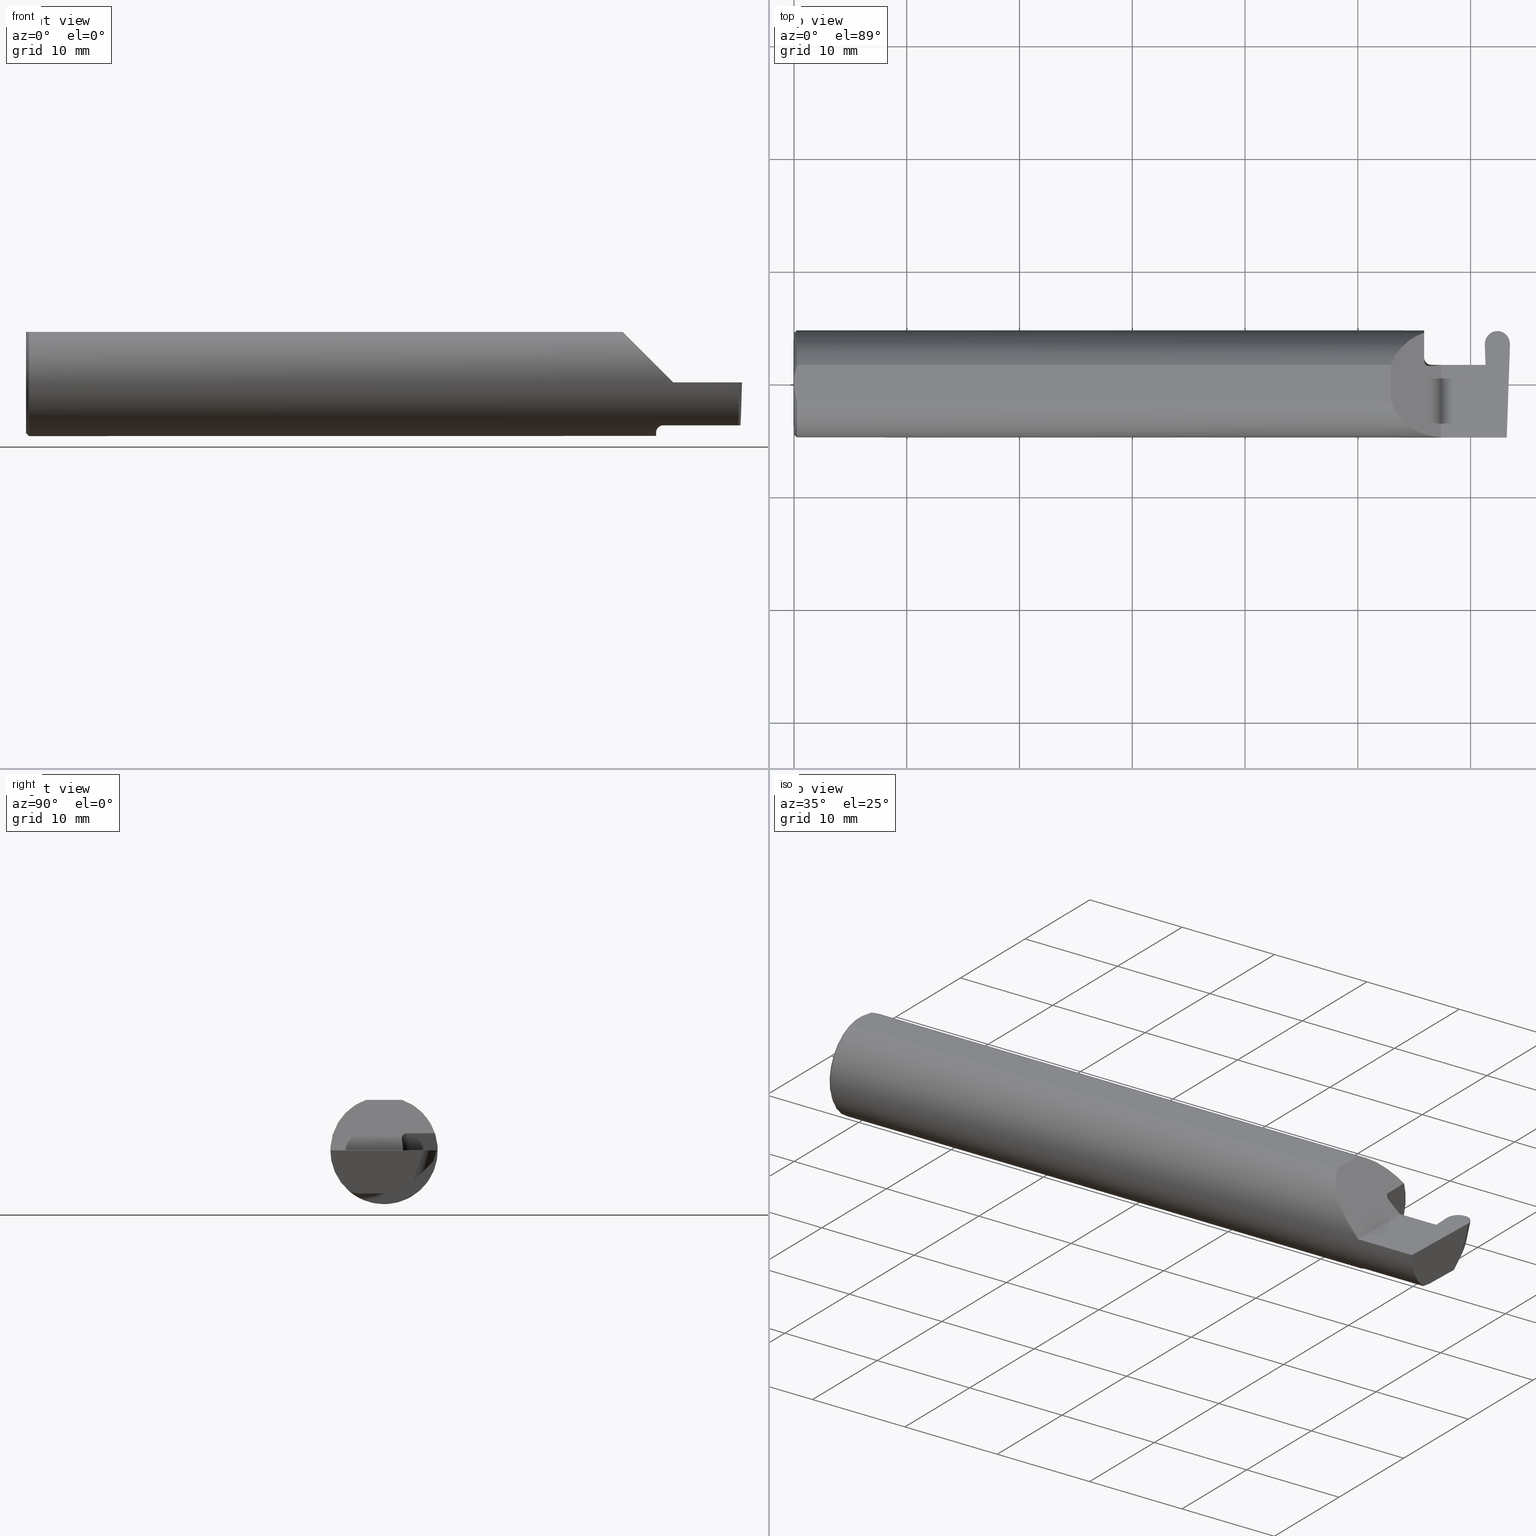
[diagram: canonical four-view strip — front | top / right | iso, engineering-drawing reading convention]
A machine part, canonical four-view strip (front | top / right | iso — engineering-drawing reading convention). The complete STEP part file that produces these views, byte-faithful:
ISO-10303-21;
HEADER;
FILE_DESCRIPTION (( 'STEP AP203' ),
    '1' );
FILE_NAME ('222188-GFR087-4.STEP',
    '2024-06-28T18:14:13',
    ( '' ),
    ( '' ),
    'SwSTEP 2.0',
    'SolidWorks 2024',
    '' );
FILE_SCHEMA (( 'CONFIG_CONTROL_DESIGN' ));
ENDSEC;

DATA;
#1 = UNCERTAINTY_MEASURE_WITH_UNIT (LENGTH_MEASURE( 1.000000000000000082E-05 ), #66, 'distance_accuracy_value', 'NONE');
#2 = CARTESIAN_POINT ( 'NONE',  ( 2.200358271039143165, -0.07873626113568055196, -0.1700887912276896896 ) ) ;
#3 = CARTESIAN_POINT ( 'NONE',  ( 2.414359555045604289, 0.06664999999999991764, 0.000000000000000000 ) ) ;
#4 = ORIENTED_EDGE ( 'NONE', *, *, #500, .F. ) ;
#5 = FACE_OUTER_BOUND ( 'NONE', #675, .T. ) ;
#6 = CARTESIAN_POINT ( 'NONE',  ( 2.498904563091020936, 0.1423838600483241235, -0.06791919149482580909 ) ) ;
#7 = CIRCLE ( 'NONE', #386, 0.1873499999999999888 ) ;
#8 = ORIENTED_EDGE ( 'NONE', *, *, #26, .F. ) ;
#9 = CARTESIAN_POINT ( 'NONE',  ( 2.488471823259917226, -0.1172600179964003730, -0.1461167706989304760 ) ) ;
#10 = ORIENTED_EDGE ( 'NONE', *, *, #128, .T. ) ;
#11 = CARTESIAN_POINT ( 'NONE',  ( 2.225000000000000089, 0.06250952145814828165, 0.03500000000000009354 ) ) ;
#12 = ORGANIZATION ( 'UNSPECIFIED', 'UNSPECIFIED', '' ) ;
#13 = DIRECTION ( 'NONE',  ( 1.000000000000000000, 0.000000000000000000, -0.000000000000000000 ) ) ;
#14 = ORIENTED_EDGE ( 'NONE', *, *, #492, .F. ) ;
#15 = APPROVAL ( #76, 'UNSPECIFIED' ) ;
#16 = CARTESIAN_POINT ( 'NONE',  ( 2.260000000000000231, -0.1873499999999999888, 2.939152317953647352E-17 ) ) ;
#17 = VERTEX_POINT ( 'NONE', #473 ) ;
#18 = EDGE_CURVE ( 'NONE', #592, #421, #639, .T. ) ;
#19 = LINE ( 'NONE', #27, #21 ) ;
#20 = ORIENTED_EDGE ( 'NONE', *, *, #403, .F. ) ;
#21 = VECTOR ( 'NONE', #640, 39.37007874015748143 ) ;
#22 = CARTESIAN_POINT ( 'NONE',  ( 2.455902844999999779, 0.1774764172755840530, -0.02207801745349973269 ) ) ;
#23 = CC_DESIGN_DATE_AND_TIME_ASSIGNMENT ( #672, #132, ( #510 ) ) ;
#24 = ORIENTED_EDGE ( 'NONE', *, *, #268, .T. ) ;
#25 = PERSON_AND_ORGANIZATION_ROLE ( 'creator' ) ;
#26 = EDGE_CURVE ( 'NONE', #421, #620, #243, .T. ) ;
#27 = CARTESIAN_POINT ( 'NONE',  ( 2.411832552795360574, 0.1390138764844879860, 0.000000000000000000 ) ) ;
#28 = CARTESIAN_POINT ( 'NONE',  ( 2.200000000000000178, 0.06664999999999997315, 3.673940397442062580E-17 ) ) ;
#29 = AXIS2_PLACEMENT_3D ( 'NONE', #73, #180, #301 ) ;
#30 = DIRECTION ( 'NONE',  ( -0.000000000000000000, 1.000000000000000000, -0.000000000000000000 ) ) ;
#31 = ORIENTED_EDGE ( 'NONE', *, *, #356, .F. ) ;
#32 = APPROVAL_DATE_TIME ( #304, #279 ) ;
#33 = DIRECTION ( 'NONE',  ( -0.01299916717458333634, 0.7070470357949163454, 0.7070470357949245610 ) ) ;
#34 = ORIENTED_EDGE ( 'NONE', *, *, #262, .F. ) ;
#35 = PRODUCT_DEFINITION_FORMATION_WITH_SPECIFIED_SOURCE ( 'ANY', '', #647, .NOT_KNOWN. ) ;
#36 = ADVANCED_FACE ( 'NONE', ( #137 ), #184, .F. ) ;
#37 = CARTESIAN_POINT ( 'NONE',  ( 0.000000000000000000, 0.000000000000000000, -0.1773500000000005072 ) ) ;
#38 = DIRECTION ( 'NONE',  ( -6.448948547284692709E-16, 1.000000000000000000, 0.000000000000000000 ) ) ;
#39 = CARTESIAN_POINT ( 'NONE',  ( 0.000000000000000000, 0.01880691362239451242, 0.1763499999999999235 ) ) ;
#40 = DIRECTION ( 'NONE',  ( -0.02739170151059988276, -0.3089010440752014142, -0.9506996579664920288 ) ) ;
#41 = ORIENTED_EDGE ( 'NONE', *, *, #470, .T. ) ;
#42 = FACE_OUTER_BOUND ( 'NONE', #273, .T. ) ;
#43 = DIRECTION ( 'NONE',  ( -1.000000000000000000, -6.448948547284692709E-16, -0.000000000000000000 ) ) ;
#44 = ORIENTED_EDGE ( 'NONE', *, *, #546, .F. ) ;
#45 = DIRECTION ( 'NONE',  ( 0.7071067811865426878, 0.000000000000000000, -0.7071067811865523467 ) ) ;
#46 = EDGE_CURVE ( 'NONE', #373, #17, #100, .T. ) ;
#47 = CARTESIAN_POINT ( 'NONE',  ( 2.200000000000000178, -0.06851976604679038685, -0.1743704796142199753 ) ) ;
#48 = VERTEX_POINT ( 'NONE', #188 ) ;
#49 = CARTESIAN_POINT ( 'NONE',  ( 2.408029482914489705, 0.2353781697884670399, 0.02507511824531821407 ) ) ;
#50 = CARTESIAN_POINT ( 'NONE',  ( 2.083649999999998670, -0.06325108694718283020, 0.1763499999999999235 ) ) ;
#51 = ORIENTED_EDGE ( 'NONE', *, *, #179, .T. ) ;
#52 =( LENGTH_UNIT ( ) NAMED_UNIT ( * ) SI_UNIT ( $, .METRE. ) );
#53 = CONICAL_SURFACE ( 'NONE', #140, 0.1773500000000005072, 0.7853981633974551624 ) ;
#54 = DIRECTION ( 'NONE',  ( -0.03489949670249319069, -0.9993908270190959842, 0.000000000000000000 ) ) ;
#55 = ORIENTED_EDGE ( 'NONE', *, *, #584, .T. ) ;
#56 = EDGE_CURVE ( 'NONE', #431, #562, #526, .T. ) ;
#57 =( NAMED_UNIT ( * ) SI_UNIT ( $, .STERADIAN. ) SOLID_ANGLE_UNIT ( ) );
#58 = CARTESIAN_POINT ( 'NONE',  ( 3.749399456654646757E-32, -0.1873499999999999610, 3.061616997868383634E-16 ) ) ;
#59 = ORIENTED_EDGE ( 'NONE', *, *, #570, .T. ) ;
#60 = B_SPLINE_CURVE_WITH_KNOTS ( 'NONE', 3,
 ( #167, #229, #563, #553, #108, #281, #454, #335, #499, #2, #226, #171 ),
 .UNSPECIFIED., .F., .F.,
 ( 4, 2, 2, 2, 2, 4 ),
 ( 1.967976973658592312E-07, 0.0002120314145722274079, 0.0004238660314470889213, 0.0008475352651968000219, 0.001271204498946511014, 0.001694873732696222006 ),
 .UNSPECIFIED. ) ;
#61 = CARTESIAN_POINT ( 'NONE',  ( 2.200000000000000178, 0.08104282222773613598, 0.05999999999999955369 ) ) ;
#62 = VECTOR ( 'NONE', #64, 39.37007874015748143 ) ;
#63 = EDGE_LOOP ( 'NONE', ( #610, #417, #221, #8, #351, #695, #34, #392, #231 ) ) ;
#64 = DIRECTION ( 'NONE',  ( -0.02739170151060013256, 0.3089010440752014142, 0.9506996579664918068 ) ) ;
#65 = ORIENTED_EDGE ( 'NONE', *, *, #426, .T. ) ;
#66 =( CONVERSION_BASED_UNIT ( 'INCH', #164 ) LENGTH_UNIT ( ) NAMED_UNIT ( #239 ) );
#67 = LOCAL_TIME ( 11, 14, 13.00000000000000000, #357 ) ;
#68 = ORIENTED_EDGE ( 'NONE', *, *, #643, .F. ) ;
#69 = DATE_AND_TIME ( #182, #248 ) ;
#70 = ORIENTED_EDGE ( 'NONE', *, *, #356, .T. ) ;
#71 = CIRCLE ( 'NONE', #303, 0.1773500000000005072 ) ;
#72 = DATE_TIME_ROLE ( 'creation_date' ) ;
#73 = CARTESIAN_POINT ( 'NONE',  ( 2.200000000000000178, -0.08335000000000011844, 0.000000000000000000 ) ) ;
#74 = VERTEX_POINT ( 'NONE', #131 ) ;
#75 = ADVANCED_FACE ( 'NONE', ( #366 ), #466, .T. ) ;
#76 = APPROVAL_STATUS ( 'not_yet_approved' ) ;
#77 = DIRECTION ( 'NONE',  ( 0.000000000000000000, 1.000000000000000000, 0.000000000000000000 ) ) ;
#78 = EDGE_LOOP ( 'NONE', ( #123, #316, #512, #377, #116, #256, #337, #44, #706 ) ) ;
#79 = COORDINATED_UNIVERSAL_TIME_OFFSET ( 8, 0, .BEHIND. ) ;
#80 = ORIENTED_EDGE ( 'NONE', *, *, #56, .F. ) ;
#81 = PERSON_AND_ORGANIZATION_ROLE ( 'creator' ) ;
#82 = CARTESIAN_POINT ( 'NONE',  ( 2.414604789881163338, 0.1944998514117471100, -0.01580320013140219110 ) ) ;
#83 = ORIENTED_EDGE ( 'NONE', *, *, #474, .T. ) ;
#84 = AXIS2_PLACEMENT_3D ( 'NONE', #318, #481, #538 ) ;
#85 = CARTESIAN_POINT ( 'NONE',  ( 0.000000000000000000, 0.000000000000000000, 0.000000000000000000 ) ) ;
#86 = ORIENTED_EDGE ( 'NONE', *, *, #389, .F. ) ;
#87 = ADVANCED_FACE ( 'NONE', ( #255 ), #545, .F. ) ;
#88 = DIRECTION ( 'NONE',  ( 0.000000000000000000, -0.7071067811865516806, 0.7071067811865434649 ) ) ;
#89 = CARTESIAN_POINT ( 'NONE',  ( 0.000000000000000000, 0.01880691362239451242, 0.1763499999999999235 ) ) ;
#90 = LOCAL_TIME ( 11, 14, 13.00000000000000000, #411 ) ;
#91 = AXIS2_PLACEMENT_3D ( 'NONE', #324, #482, #372 ) ;
#92 = CYLINDRICAL_SURFACE ( 'NONE', #156, 0.1500000000000001055 ) ;
#93 = CARTESIAN_POINT ( 'NONE',  ( 2.200000000000000178, 0.06655862405286426531, -0.005234924505377318293 ) ) ;
#94 = EDGE_LOOP ( 'NONE', ( #439, #450, #112 ) ) ;
#95 = EDGE_CURVE ( 'NONE', #245, #592, #213, .T. ) ;
#96 = DIRECTION ( 'NONE',  ( 1.000000000000000000, 0.000000000000000000, 0.000000000000000000 ) ) ;
#97 = CARTESIAN_POINT ( 'NONE',  ( 2.405147528298442694, 0.06655862405286405714, -0.005234924505387532345 ) ) ;
#98 = ORIENTED_EDGE ( 'NONE', *, *, #492, .T. ) ;
#99 = APPROVAL_PERSON_ORGANIZATION ( #574, #15, #402 ) ;
#100 =( BOUNDED_CURVE ( )  B_SPLINE_CURVE ( 3, ( #363, #515, #181, #414 ),
 .UNSPECIFIED., .F., .F. ) 
 B_SPLINE_CURVE_WITH_KNOTS ( ( 4, 4 ),
 ( 3.057488531086357764, 4.656081685705083295 ),
 .UNSPECIFIED. ) 
 CURVE ( )  GEOMETRIC_REPRESENTATION_ITEM ( )  RATIONAL_B_SPLINE_CURVE ( ( 1.000000000000000000, 0.7981407609938078185, 0.7981407609938078185, 1.000000000000000000 ) ) 
 REPRESENTATION_ITEM ( '' )  );
#101 = DIRECTION ( 'NONE',  ( 0.000000000000000000, 0.000000000000000000, 1.000000000000000000 ) ) ;
#102 = LINE ( 'NONE', #93, #161 ) ;
#103 = VERTEX_POINT ( 'NONE', #50 ) ;
#104 = DIRECTION ( 'NONE',  ( 6.448948547284692709E-16, -1.000000000000000000, 0.000000000000000000 ) ) ;
#105 = CARTESIAN_POINT ( 'NONE',  ( 0.000000000000000000, 0.000000000000000000, 0.000000000000000000 ) ) ;
#106 = ADVANCED_FACE ( 'NONE', ( #543 ), #428, .F. ) ;
#107 = VERTEX_POINT ( 'NONE', #381 ) ;
#108 = CARTESIAN_POINT ( 'NONE',  ( 2.213203859946834662, -0.1120371980050636485, -0.1501764597936561252 ) ) ;
#109 = LINE ( 'NONE', #394, #219 ) ;
#110 = ORIENTED_EDGE ( 'NONE', *, *, #319, .F. ) ;
#111 = DIRECTION ( 'NONE',  ( 0.000000000000000000, 0.000000000000000000, -1.000000000000000000 ) ) ;
#112 = ORIENTED_EDGE ( 'NONE', *, *, #365, .T. ) ;
#113 = EDGE_CURVE ( 'NONE', #536, #409, #694, .T. ) ;
#114 = DIRECTION ( 'NONE',  ( 6.448948547284691722E-16, -1.000000000000000000, -6.448948547284629600E-16 ) ) ;
#115 = VECTOR ( 'NONE', #681, 39.37007874015748143 ) ;
#116 = ORIENTED_EDGE ( 'NONE', *, *, #189, .F. ) ;
#117 = EDGE_CURVE ( 'NONE', #409, #390, #102, .T. ) ;
#118 = CARTESIAN_POINT ( 'NONE',  ( 2.489189135516857831, -0.09477667630339313420, -0.1500000000000002165 ) ) ;
#119 = AXIS2_PLACEMENT_3D ( 'NONE', #590, #88, #529 ) ;
#120 = VERTEX_POINT ( 'NONE', #47 ) ;
#121 = PERSON_AND_ORGANIZATION ( #282, #12 ) ;
#122 = FACE_OUTER_BOUND ( 'NONE', #205, .T. ) ;
#123 = ORIENTED_EDGE ( 'NONE', *, *, #513, .T. ) ;
#124 = SHAPE_DEFINITION_REPRESENTATION ( #317, #581 ) ;
#125 = LINE ( 'NONE', #631, #588 ) ;
#126 = DIRECTION ( 'NONE',  ( 0.000000000000000000, -0.9510565162951533091, 0.3090169943749482284 ) ) ;
#127 = AXIS2_PLACEMENT_3D ( 'NONE', #315, #40, #535 ) ;
#128 = EDGE_CURVE ( 'NONE', #678, #401, #299, .T. ) ;
#129 = APPROVAL_DATE_TIME ( #622, #15 ) ;
#130 = FACE_OUTER_BOUND ( 'NONE', #463, .T. ) ;
#131 = CARTESIAN_POINT ( 'NONE',  ( 2.225000000000000089, -0.1172600179964003730, -0.1461167706989306148 ) ) ;
#132 = DATE_TIME_ROLE ( 'classification_date' ) ;
#133 = CARTESIAN_POINT ( 'NONE',  ( 0.000000000000000000, 0.000000000000000000, 0.000000000000000000 ) ) ;
#134 = DIRECTION ( 'NONE',  ( 0.000000000000000000, -0.3090169943749482284, -0.9510565162951533091 ) ) ;
#135 = ADVANCED_FACE ( 'NONE', ( #601 ), #438, .T. ) ;
#136 = CARTESIAN_POINT ( 'NONE',  ( 2.417117359278221134, -0.08344969023253068219, -0.1500000000000000500 ) ) ;
#137 = FACE_OUTER_BOUND ( 'NONE', #483, .T. ) ;
#138 = ADVANCED_FACE ( 'NONE', ( #591 ), #154, .T. ) ;
#139 = CARTESIAN_POINT ( 'NONE',  ( 2.454466413000633729, 0.1638660340547883620, -0.06396646982678888538 ) ) ;
#140 = AXIS2_PLACEMENT_3D ( 'NONE', #487, #478, #212 ) ;
#141 = DIRECTION ( 'NONE',  ( 0.000000000000000000, 0.000000000000000000, -1.000000000000000000 ) ) ;
#142 = CARTESIAN_POINT ( 'NONE',  ( 2.488576259503493926, -0.1873499999999999888, 0.000000000000000000 ) ) ;
#143 = ORIENTED_EDGE ( 'NONE', *, *, #253, .T. ) ;
#144 = CC_DESIGN_PERSON_AND_ORGANIZATION_ASSIGNMENT ( #679, #626, ( #510 ) ) ;
#145 = PLANE ( 'NONE',  #119 ) ;
#146 = CARTESIAN_POINT ( 'NONE',  ( 2.200000000000000178, 0.000000000000000000, 0.000000000000000000 ) ) ;
#147 = ORIENTED_EDGE ( 'NONE', *, *, #513, .F. ) ;
#148 = EDGE_CURVE ( 'NONE', #107, #209, #444, .T. ) ;
#149 = AXIS2_PLACEMENT_3D ( 'NONE', #657, #697, #477 ) ;
#150 = CARTESIAN_POINT ( 'NONE',  ( 2.876828993045917215, 0.1873499999999998500, 0.1763499999999999235 ) ) ;
#151 = CARTESIAN_POINT ( 'NONE',  ( 0.000000000000000000, -0.01880691362239451242, 0.1763499999999999235 ) ) ;
#152 = ORIENTED_EDGE ( 'NONE', *, *, #426, .F. ) ;
#153 = DIRECTION ( 'NONE',  ( 0.000000000000000000, 0.000000000000000000, 1.000000000000000000 ) ) ;
#154 = CYLINDRICAL_SURFACE ( 'NONE', #91, 0.04399999999999999051 ) ;
#155 = EDGE_LOOP ( 'NONE', ( #497, #143, #340, #259, #355, #152 ) ) ;
#156 = AXIS2_PLACEMENT_3D ( 'NONE', #593, #656, #691 ) ;
#157 = EDGE_CURVE ( 'NONE', #163, #547, #71, .T. ) ;
#158 = CARTESIAN_POINT ( 'NONE',  ( 2.405177986947488300, 0.06658908270190934398, -0.003489949670258354463 ) ) ;
#159 = ORIENTED_EDGE ( 'NONE', *, *, #551, .T. ) ;
#160 = DIRECTION ( 'NONE',  ( 1.000000000000000000, 0.000000000000000000, 0.000000000000000000 ) ) ;
#161 = VECTOR ( 'NONE', #43, 39.37007874015748143 ) ;
#162 = DIRECTION ( 'NONE',  ( 0.000000000000000000, -0.01745240643728358451, -0.9998476951563912696 ) ) ;
#163 = VERTEX_POINT ( 'NONE', #89 ) ;
#164 = LENGTH_MEASURE_WITH_UNIT ( LENGTH_MEASURE( 0.02539999999999999897 ), #52 );
#165 = CARTESIAN_POINT ( 'NONE',  ( 2.496782013450320470, 0.1018667288808076526, -0.1084363226623427101 ) ) ;
#166 = ORIENTED_EDGE ( 'NONE', *, *, #277, .F. ) ;
#167 = CARTESIAN_POINT ( 'NONE',  ( 2.225000000000000089, -0.1172600179964003730, -0.1461167706989306148 ) ) ;
#168 = LINE ( 'NONE', #624, #62 ) ;
#169 = ORIENTED_EDGE ( 'NONE', *, *, #246, .F. ) ;
#170 = EDGE_CURVE ( 'NONE', #443, #360, #266, .T. ) ;
#171 = CARTESIAN_POINT ( 'NONE',  ( 2.200000000000000178, -0.06851976604679038685, -0.1743704796142199753 ) ) ;
#172 = CARTESIAN_POINT ( 'NONE',  ( 2.496782013450320470, 0.1018667288808076526, -0.1084363226623427101 ) ) ;
#173 =( BOUNDED_CURVE ( )  B_SPLINE_CURVE ( 3, ( #408, #22, #193, #423 ),
 .UNSPECIFIED., .F., .F. ) 
 B_SPLINE_CURVE_WITH_KNOTS ( ( 4, 4 ),
 ( 4.712388980384680792, 4.728033103810985516 ),
 .UNSPECIFIED. ) 
 CURVE ( )  GEOMETRIC_REPRESENTATION_ITEM ( )  RATIONAL_B_SPLINE_CURVE ( ( 1.000000000000000000, 0.9999796052208393959, 0.9999796052208393959, 1.000000000000000000 ) ) 
 REPRESENTATION_ITEM ( '' )  );
#174 = ORIENTED_EDGE ( 'NONE', *, *, #671, .F. ) ;
#175 = APPLICATION_PROTOCOL_DEFINITION ( 'international standard', 'config_control_design', 1994, #378 ) ;
#176 = CARTESIAN_POINT ( 'NONE',  ( 2.499973137204639428, 0.1390138764844880415, 0.000000000000000000 ) ) ;
#177 = ORIENTED_EDGE ( 'NONE', *, *, #579, .T. ) ;
#178 = APPROVAL_ROLE ( '' ) ;
#179 = EDGE_CURVE ( 'NONE', #373, #370, #204, .T. ) ;
#180 = DIRECTION ( 'NONE',  ( -1.000000000000000000, -6.448948547284692709E-16, -0.000000000000000000 ) ) ;
#181 = CARTESIAN_POINT ( 'NONE',  ( 2.410932386210230760, 0.1647912748130948291, 1.084111754673048372E-17 ) ) ;
#182 = CALENDAR_DATE ( 2024, 28, 6 ) ;
#183 = CARTESIAN_POINT ( 'NONE',  ( 2.405147528298442694, 0.06655862405286405714, -0.005234924505387532345 ) ) ;
#184 = PLANE ( 'NONE',  #252 ) ;
#185 = CIRCLE ( 'NONE', #519, 0.1773500000000005072 ) ;
#186 = PERSON_AND_ORGANIZATION_ROLE ( 'design_supplier' ) ;
#187 = DIRECTION ( 'NONE',  ( -1.000000000000000000, -0.000000000000000000, -0.000000000000000000 ) ) ;
#188 = CARTESIAN_POINT ( 'NONE',  ( 2.489588163846105484, -0.08334999999999859188, -0.1500000000000000500 ) ) ;
#189 = EDGE_CURVE ( 'NONE', #390, #421, #396, .T. ) ;
#190 = CARTESIAN_POINT ( 'NONE',  ( 2.500873303789769686, 0.1647912748130947458, 3.031548046095857555E-18 ) ) ;
#191 =( GEOMETRIC_REPRESENTATION_CONTEXT ( 3 ) GLOBAL_UNCERTAINTY_ASSIGNED_CONTEXT ( ( #1 ) ) GLOBAL_UNIT_ASSIGNED_CONTEXT ( ( #66, #658, #57 ) ) REPRESENTATION_CONTEXT ( 'NONE', 'WORKASPACE' ) );
#192 = EDGE_LOOP ( 'NONE', ( #555, #55, #617, #447 ) ) ;
#193 = CARTESIAN_POINT ( 'NONE',  ( 2.455902844999999779, 0.1748862760345997469, -0.03004384457774860254 ) ) ;
#194 = VERTEX_POINT ( 'NONE', #442 ) ;
#195 = LOCAL_TIME ( 11, 14, 13.00000000000000000, #567 ) ;
#196 = VECTOR ( 'NONE', #237, 39.37007874015748143 ) ;
#197 = DIRECTION ( 'NONE',  ( 1.000000000000000000, 0.000000000000000000, 0.000000000000000000 ) ) ;
#198 = PLANE ( 'NONE',  #465 ) ;
#199 = LINE ( 'NONE', #429, #419 ) ;
#200 = EDGE_CURVE ( 'NONE', #120, #573, #374, .T. ) ;
#201 = CARTESIAN_POINT ( 'NONE',  ( 0.000000000000000000, 0.06325108694718235836, 0.1763499999999999235 ) ) ;
#202 = VERTEX_POINT ( 'NONE', #539 ) ;
#203 = FACE_OUTER_BOUND ( 'NONE', #686, .T. ) ;
#204 = LINE ( 'NONE', #646, #206 ) ;
#205 = EDGE_LOOP ( 'NONE', ( #395, #333, #486, #65 ) ) ;
#206 = VECTOR ( 'NONE', #705, 39.37007874015748143 ) ;
#207 = DIRECTION ( 'NONE',  ( 1.000000000000000000, 0.000000000000000000, -0.000000000000000000 ) ) ;
#208 = CARTESIAN_POINT ( 'NONE',  ( 2.488471823259917226, -0.1172600179964003730, -0.1461167706989304760 ) ) ;
#209 = VERTEX_POINT ( 'NONE', #251 ) ;
#210 = ADVANCED_FACE ( 'NONE', ( #692 ), #198, .F. ) ;
#211 = AXIS2_PLACEMENT_3D ( 'NONE', #254, #427, #696 ) ;
#212 = DIRECTION ( 'NONE',  ( 0.000000000000000000, 0.000000000000000000, -1.000000000000000000 ) ) ;
#213 = LINE ( 'NONE', #644, #594 ) ;
#214 = ORIENTED_EDGE ( 'NONE', *, *, #652, .F. ) ;
#215 = CARTESIAN_POINT ( 'NONE',  ( 2.260000000000000231, -0.2500000000000000555, 2.939152317953647352E-17 ) ) ;
#216 = LINE ( 'NONE', #343, #700 ) ;
#217 = ORIENTED_EDGE ( 'NONE', *, *, #603, .F. ) ;
#218 = CC_DESIGN_SECURITY_CLASSIFICATION ( #510, ( #35 ) ) ;
#219 = VECTOR ( 'NONE', #455, 39.37007874015748143 ) ;
#220 = CARTESIAN_POINT ( 'NONE',  ( 2.489588163846105484, -0.08334999999999859188, -0.1500000000000000500 ) ) ;
#221 = ORIENTED_EDGE ( 'NONE', *, *, #435, .F. ) ;
#222 = FACE_OUTER_BOUND ( 'NONE', #641, .T. ) ;
#223 = PLANE ( 'NONE',  #476 ) ;
#224 = EDGE_CURVE ( 'NONE', #586, #401, #564, .T. ) ;
#225 = ORIENTED_EDGE ( 'NONE', *, *, #113, .T. ) ;
#226 = CARTESIAN_POINT ( 'NONE',  ( 2.199999999999999289, -0.07368234487347168071, -0.1723418180300748670 ) ) ;
#227 = CARTESIAN_POINT ( 'NONE',  ( 2.455902844999999779, 0.1722946655495198598, -0.03800838599362973275 ) ) ;
#228 = EDGE_LOOP ( 'NONE', ( #298, #651, #159, #267 ) ) ;
#229 = CARTESIAN_POINT ( 'NONE',  ( 2.222174967710398796, -0.1172600179964003314, -0.1461167706989305870 ) ) ;
#230 = CARTESIAN_POINT ( 'NONE',  ( 2.222331837506049901, 0.06186927743178083361, 0.03766816249395004562 ) ) ;
#231 = ORIENTED_EDGE ( 'NONE', *, *, #389, .T. ) ;
#232 = EDGE_CURVE ( 'NONE', #573, #661, #216, .T. ) ;
#233 = CARTESIAN_POINT ( 'NONE',  ( 2.178182770154592163, -0.1873500000000000443, 0.08181722984540684696 ) ) ;
#234 = VECTOR ( 'NONE', #437, 39.37007874015748143 ) ;
#235 = EDGE_LOOP ( 'NONE', ( #459, #425, #41, #469, #667 ) ) ;
#236 = CARTESIAN_POINT ( 'NONE',  ( 2.260000000000000231, -0.1873499999999999888, 2.939152317953647352E-17 ) ) ;
#237 = DIRECTION ( 'NONE',  ( 1.000000000000000000, 6.448948547284692709E-16, 0.000000000000000000 ) ) ;
#238 = APPLICATION_CONTEXT ( 'configuration controlled 3d designs of mechanical parts and assemblies' ) ;
#239 = DIMENSIONAL_EXPONENTS ( 1.000000000000000000, 0.000000000000000000, 0.000000000000000000, 0.000000000000000000, 0.000000000000000000, 0.000000000000000000, 0.000000000000000000 ) ;
#240 = PERSON_AND_ORGANIZATION ( #282, #12 ) ;
#241 = CARTESIAN_POINT ( 'NONE',  ( 2.456309424548497766, 0.1846500000000000363, 0.000000000000000000 ) ) ;
#242 = ADVANCED_FACE ( 'NONE', ( #122 ), #666, .F. ) ;
#243 = LINE ( 'NONE', #636, #115 ) ;
#244 = LINE ( 'NONE', #580, #412 ) ;
#245 = VERTEX_POINT ( 'NONE', #16 ) ;
#246 = EDGE_CURVE ( 'NONE', #284, #329, #436, .T. ) ;
#247 = DIRECTION ( 'NONE',  ( 0.01806679408117492502, 0.000000000000000000, -0.9998367821557817559 ) ) ;
#248 = LOCAL_TIME ( 11, 14, 13.00000000000000000, #415 ) ;
#249 = EDGE_LOOP ( 'NONE', ( #589, #456, #684, #607, #31, #490 ) ) ;
#250 = CARTESIAN_POINT ( 'NONE',  ( 0.001616639753276218755, 0.03405189565400963680, 0.1763499999999999235 ) ) ;
#251 = CARTESIAN_POINT ( 'NONE',  ( 0.000000000000000000, -0.01880691362239451242, 0.1763499999999999235 ) ) ;
#252 = AXIS2_PLACEMENT_3D ( 'NONE', #295, #126, #134 ) ;
#253 = EDGE_CURVE ( 'NONE', #329, #586, #272, .T. ) ;
#254 = CARTESIAN_POINT ( 'NONE',  ( 0.000000000000000000, 0.000000000000000000, 0.000000000000000000 ) ) ;
#255 = FACE_OUTER_BOUND ( 'NONE', #502, .T. ) ;
#256 = ORIENTED_EDGE ( 'NONE', *, *, #117, .F. ) ;
#257 = LINE ( 'NONE', #380, #234 ) ;
#258 = CARTESIAN_POINT ( 'NONE',  ( 0.009999999999999346217, -0.06325108694718235836, 0.1763499999999999235 ) ) ;
#259 = ORIENTED_EDGE ( 'NONE', *, *, #128, .F. ) ;
#260 = LINE ( 'NONE', #49, #491 ) ;
#261 = DIRECTION ( 'NONE',  ( -0.01806954526206909148, 0.01744955702544859211, 0.9996844524616943506 ) ) ;
#262 = EDGE_CURVE ( 'NONE', #401, #245, #405, .T. ) ;
#263 = ORIENTED_EDGE ( 'NONE', *, *, #457, .F. ) ;
#264 = PRODUCT_DEFINITION ( 'UNKNOWN', '', #35, #269 ) ;
#265 = DIRECTION ( 'NONE',  ( -0.03701744261649800305, 0.7066221440565397804, 0.7066221440565478851 ) ) ;
#266 = LINE ( 'NONE', #201, #290 ) ;
#267 = ORIENTED_EDGE ( 'NONE', *, *, #570, .F. ) ;
#268 = EDGE_CURVE ( 'NONE', #202, #373, #168, .T. ) ;
#269 = DESIGN_CONTEXT ( 'detailed design', #378, 'design' ) ;
#270 = AXIS2_PLACEMENT_3D ( 'NONE', #150, #101, #207 ) ;
#271 = DIRECTION ( 'NONE',  ( -1.000000000000000000, -6.448948547284692709E-16, -0.000000000000000000 ) ) ;
#272 = LINE ( 'NONE', #336, #629 ) ;
#273 = EDGE_LOOP ( 'NONE', ( #70, #569, #625 ) ) ;
#274 = CARTESIAN_POINT ( 'NONE',  ( 2.200000000000000178, 0.1774824568795463631, 0.05999999999999961614 ) ) ;
#275 = CARTESIAN_POINT ( 'NONE',  ( 2.200842198961673102, 0.07338839382613021600, 0.05915780103832719156 ) ) ;
#276 = ORIENTED_EDGE ( 'NONE', *, *, #117, .T. ) ;
#277 = EDGE_CURVE ( 'NONE', #661, #292, #533, .T. ) ;
#278 = CARTESIAN_POINT ( 'NONE',  ( 2.417363697998881733, -2.354248658836814556, -0.1239957194858760936 ) ) ;
#279 = APPROVAL ( #361, 'UNSPECIFIED' ) ;
#280 = ORIENTED_EDGE ( 'NONE', *, *, #277, .T. ) ;
#281 = CARTESIAN_POINT ( 'NONE',  ( 2.208439486659306450, -0.1064616213911156045, -0.1542305641651502135 ) ) ;
#282 = PERSON ( 'UNSPECIFIED', 'UNSPECIFIED', 'UNSPECIFIED', ('UNSPECIFIED'), ('UNSPECIFIED'), ('UNSPECIFIED') ) ;
#283 = CARTESIAN_POINT ( 'NONE',  ( 2.199999999999999734, 0.07723724220654794304, 0.05999999999999977573 ) ) ;
#284 = VERTEX_POINT ( 'NONE', #227 ) ;
#285 = AXIS2_PLACEMENT_3D ( 'NONE', #445, #271, #104 ) ;
#286 = CARTESIAN_POINT ( 'NONE',  ( 2.417117327835069940, -0.08334999999999997966, -0.1500000000000000777 ) ) ;
#287 = ORIENTED_EDGE ( 'NONE', *, *, #170, .F. ) ;
#288 = EDGE_CURVE ( 'NONE', #678, #48, #352, .T. ) ;
#289 = CC_DESIGN_APPROVAL ( #345, ( #35 ) ) ;
#290 = VECTOR ( 'NONE', #430, 39.37007874015748143 ) ;
#291 = CARTESIAN_POINT ( 'NONE',  ( 2.455496265451502236, 0.1846500000000000363, 0.000000000000000000 ) ) ;
#292 = VERTEX_POINT ( 'NONE', #391 ) ;
#293 = CALENDAR_DATE ( 2024, 28, 6 ) ;
#294 = CARTESIAN_POINT ( 'NONE',  ( 2.456309424548497766, 0.1846500000000000363, 0.000000000000000000 ) ) ;
#295 = CARTESIAN_POINT ( 'NONE',  ( -3.937007874019685528E-05, 0.1846500000000000363, 0.000000000000000000 ) ) ;
#296 = PERSON_AND_ORGANIZATION ( #282, #12 ) ;
#297 = CYLINDRICAL_SURFACE ( 'NONE', #330, 0.1873499999999999888 ) ;
#298 = ORIENTED_EDGE ( 'NONE', *, *, #584, .F. ) ;
#299 =( BOUNDED_CURVE ( )  B_SPLINE_CURVE ( 3, ( #208, #485, #701, #142 ),
 .UNSPECIFIED., .F., .F. ) 
 B_SPLINE_CURVE_WITH_KNOTS ( ( 4, 4 ),
 ( 5.852427379562184839, 6.746954780470634461 ),
 .UNSPECIFIED. ) 
 CURVE ( )  GEOMETRIC_REPRESENTATION_ITEM ( )  RATIONAL_B_SPLINE_CURVE ( ( 1.000000000000000000, 0.9344226172588800949, 0.9344226172588800949, 1.000000000000000000 ) ) 
 REPRESENTATION_ITEM ( '' )  );
#300 = ADVANCED_FACE ( 'NONE', ( #501 ), #508, .F. ) ;
#301 = DIRECTION ( 'NONE',  ( 0.000000000000000000, -1.000000000000000000, 0.000000000000000000 ) ) ;
#302 = ORIENTED_EDGE ( 'NONE', *, *, #461, .F. ) ;
#303 = AXIS2_PLACEMENT_3D ( 'NONE', #105, #327, #598 ) ;
#304 = DATE_AND_TIME ( #293, #195 ) ;
#305 = CARTESIAN_POINT ( 'NONE',  ( 0.000000000000000000, 0.000000000000000000, 0.000000000000000000 ) ) ;
#306 = ORIENTED_EDGE ( 'NONE', *, *, #652, .T. ) ;
#307 = AXIS2_PLACEMENT_3D ( 'NONE', #323, #96, #653 ) ;
#308 = FACE_OUTER_BOUND ( 'NONE', #249, .T. ) ;
#309 = CARTESIAN_POINT ( 'NONE',  ( 2.200000000000000178, 0.1873499999999999888, 0.000000000000000000 ) ) ;
#310 = EDGE_CURVE ( 'NONE', #17, #582, #109, .T. ) ;
#311 = CARTESIAN_POINT ( 'NONE',  ( 2.260000000000000231, 0.06664999999999991764, 2.939152317953647352E-17 ) ) ;
#312 = CARTESIAN_POINT ( 'NONE',  ( 2.500000000000000000, -0.2500000000000000555, 0.000000000000000000 ) ) ;
#313 = ORIENTED_EDGE ( 'NONE', *, *, #26, .T. ) ;
#314 = AXIS2_PLACEMENT_3D ( 'NONE', #479, #650, #376 ) ;
#315 = CARTESIAN_POINT ( 'NONE',  ( 2.454466413000634173, 0.1220195473378016399, -0.05036972207429115528 ) ) ;
#316 = ORIENTED_EDGE ( 'NONE', *, *, #579, .F. ) ;
#317 = PRODUCT_DEFINITION_SHAPE ( 'NONE', 'NONE',  #264 ) ;
#318 = CARTESIAN_POINT ( 'NONE',  ( 2.225000000000000089, -0.08335000000000010456, 0.000000000000000000 ) ) ;
#319 = EDGE_CURVE ( 'NONE', #107, #103, #669, .T. ) ;
#320 = CARTESIAN_POINT ( 'NONE',  ( 2.405208445596533462, 0.06661954135095464469, -0.001744974835129177015 ) ) ;
#321 = CONICAL_SURFACE ( 'NONE', #528, 0.1773500000000005072, 0.7853981633974551624 ) ;
#322 = ORIENTED_EDGE ( 'NONE', *, *, #253, .F. ) ;
#323 = CARTESIAN_POINT ( 'NONE',  ( 0.009999999999999346217, 0.000000000000000000, 0.000000000000000000 ) ) ;
#324 = CARTESIAN_POINT ( 'NONE',  ( 2.455849646417702203, 0.1388183738650295151, 0.001331749772420891048 ) ) ;
#325 =( BOUNDED_CURVE ( )  B_SPLINE_CURVE ( 3, ( #286, #668, #665, #495 ),
 .UNSPECIFIED., .F., .F. ) 
 B_SPLINE_CURVE_WITH_KNOTS ( ( 4, 4 ),
 ( 3.159045946109700687, 4.694935687864655982 ),
 .UNSPECIFIED. ) 
 CURVE ( )  GEOMETRIC_REPRESENTATION_ITEM ( )  RATIONAL_B_SPLINE_CURVE ( ( 1.000000000000000000, 0.8128932002257800438, 0.8128932002257800438, 1.000000000000000000 ) ) 
 REPRESENTATION_ITEM ( '' )  );
#326 = CARTESIAN_POINT ( 'NONE',  ( 2.144848040052163896, 0.1588376980957759976, 0.1151519599478346284 ) ) ;
#327 = DIRECTION ( 'NONE',  ( -1.000000000000000000, -0.000000000000000000, -0.000000000000000000 ) ) ;
#328 =( BOUNDED_CURVE ( )  B_SPLINE_CURVE ( 3, ( #236, #233, #680, #568 ),
 .UNSPECIFIED., .F., .F. ) 
 B_SPLINE_CURVE_WITH_KNOTS ( ( 4, 4 ),
 ( 4.712388980384688786, 5.938809479923471635 ),
 .UNSPECIFIED. ) 
 CURVE ( )  GEOMETRIC_REPRESENTATION_ITEM ( )  RATIONAL_B_SPLINE_CURVE ( ( 1.000000000000000000, 0.8785364999009659392, 0.8785364999009659392, 1.000000000000000000 ) ) 
 REPRESENTATION_ITEM ( '' )  );
#329 = VERTEX_POINT ( 'NONE', #165 ) ;
#330 = AXIS2_PLACEMENT_3D ( 'NONE', #133, #520, #153 ) ;
#331 = CARTESIAN_POINT ( 'NONE',  ( 2.083649999999998670, 0.06325108694718283020, 0.1763499999999999235 ) ) ;
#332 = CARTESIAN_POINT ( 'NONE',  ( 0.000000000000000000, -0.06325108694718235836, 0.1763499999999999235 ) ) ;
#333 = ORIENTED_EDGE ( 'NONE', *, *, #403, .T. ) ;
#334 = EDGE_CURVE ( 'NONE', #107, #194, #7, .T. ) ;
#335 = CARTESIAN_POINT ( 'NONE',  ( 2.202960551809340028, -0.09317341542745716243, -0.1626248379125198873 ) ) ;
#336 = CARTESIAN_POINT ( 'NONE',  ( 2.499922542640338197, 0.1372830298860648612, 0.0005638438891804113369 ) ) ;
#337 = ORIENTED_EDGE ( 'NONE', *, *, #663, .F. ) ;
#338 = AXIS2_PLACEMENT_3D ( 'NONE', #3, #659, #162 ) ;
#339 = CARTESIAN_POINT ( 'NONE',  ( 2.733184360054363715, -0.08334999999999859188, -0.1500000000000000500 ) ) ;
#340 = ORIENTED_EDGE ( 'NONE', *, *, #224, .T. ) ;
#341 = PLANE ( 'NONE',  #346 ) ;
#342 = ADVANCED_FACE ( 'NONE', ( #557 ), #223, .F. ) ;
#343 = CARTESIAN_POINT ( 'NONE',  ( 2.200000000000000178, -0.2500000000000001110, 0.05999999999999934552 ) ) ;
#344 = EDGE_LOOP ( 'NONE', ( #385, #577, #302, #20 ) ) ;
#345 = APPROVAL ( #682, 'UNSPECIFIED' ) ;
#346 = AXIS2_PLACEMENT_3D ( 'NONE', #215, #397, #608 ) ;
#347 = CARTESIAN_POINT ( 'NONE',  ( 2.219643712645606559, 0.06157137645965355538, 0.04035628735439351217 ) ) ;
#348 = ORIENTED_EDGE ( 'NONE', *, *, #365, .F. ) ;
#349 = AXIS2_PLACEMENT_3D ( 'NONE', #339, #446, #13 ) ;
#350 = CARTESIAN_POINT ( 'NONE',  ( 2.488576259503493926, -0.1873499999999999888, 0.000000000000000000 ) ) ;
#351 = ORIENTED_EDGE ( 'NONE', *, *, #18, .F. ) ;
#352 =( BOUNDED_CURVE ( )  B_SPLINE_CURVE ( 3, ( #9, #619, #118, #220 ),
 .UNSPECIFIED., .F., .T. ) 
 B_SPLINE_CURVE_WITH_KNOTS ( ( 4, 4 ),
 ( 0.8789888184544136784, 1.107026853503865427 ),
 .UNSPECIFIED. ) 
 CURVE ( )  GEOMETRIC_REPRESENTATION_ITEM ( )  RATIONAL_B_SPLINE_CURVE ( ( 1.000000000000000000, 0.9956712472009927595, 0.9956712472009927595, 1.000000000000000000 ) ) 
 REPRESENTATION_ITEM ( '' )  );
#353 = PERSON_AND_ORGANIZATION_ROLE ( 'design_owner' ) ;
#354 = CARTESIAN_POINT ( 'NONE',  ( 2.083649999999998670, -0.2500000000000000555, 0.1763499999999999235 ) ) ;
#355 = ORIENTED_EDGE ( 'NONE', *, *, #288, .T. ) ;
#356 = EDGE_CURVE ( 'NONE', #209, #163, #244, .T. ) ;
#357 = COORDINATED_UNIVERSAL_TIME_OFFSET ( 8, 0, .BEHIND. ) ;
#358 = PRODUCT_RELATED_PRODUCT_CATEGORY ( 'detail', '', ( #647 ) ) ;
#359 = LINE ( 'NONE', #354, #552 ) ;
#360 = VERTEX_POINT ( 'NONE', #511 ) ;
#361 = APPROVAL_STATUS ( 'not_yet_approved' ) ;
#362 = CARTESIAN_POINT ( 'NONE',  ( 2.412901126908978622, 0.1423838600483240957, -0.06791919149482582296 ) ) ;
#363 = CARTESIAN_POINT ( 'NONE',  ( 2.455496265451502236, 0.1846500000000000363, 0.000000000000000000 ) ) ;
#364 = FACE_OUTER_BOUND ( 'NONE', #228, .T. ) ;
#365 = EDGE_CURVE ( 'NONE', #661, #120, #498, .T. ) ;
#366 = FACE_OUTER_BOUND ( 'NONE', #94, .T. ) ;
#367 = VECTOR ( 'NONE', #45, 39.37007874015748143 ) ;
#368 = PLANE ( 'NONE',  #211 ) ;
#369 = CARTESIAN_POINT ( 'NONE',  ( 0.001595548104417217512, -0.03385300050298979679, 0.1763499999999999235 ) ) ;
#370 = VERTEX_POINT ( 'NONE', #241 ) ;
#371 = CARTESIAN_POINT ( 'NONE',  ( 2.200000000000000178, 0.1774824568795463631, 0.05999999999999961614 ) ) ;
#372 = DIRECTION ( 'NONE',  ( 0.000000000000000000, 0.9510565162951533091, -0.3090169943749483394 ) ) ;
#373 = VERTEX_POINT ( 'NONE', #291 ) ;
#374 = CIRCLE ( 'NONE', #649, 0.1873499999999999888 ) ;
#375 = CARTESIAN_POINT ( 'NONE',  ( 2.494604638945829844, 0.06030305154315080546, -0.1500000000000000500 ) ) ;
#376 = DIRECTION ( 'NONE',  ( -0.03489949670249400254, 0.9993908270190959842, 0.000000000000000000 ) ) ;
#377 = ORIENTED_EDGE ( 'NONE', *, *, #18, .T. ) ;
#378 = APPLICATION_CONTEXT ( 'configuration controlled 3d designs of mechanical parts and assemblies' ) ;
#379 = EDGE_CURVE ( 'NONE', #547, #209, #185, .T. ) ;
#380 = CARTESIAN_POINT ( 'NONE',  ( 2.733184360054363715, -0.08334999999999859188, -0.1500000000000000500 ) ) ;
#381 = CARTESIAN_POINT ( 'NONE',  ( 0.009999999999999346217, -0.06325108694718235836, 0.1763499999999999235 ) ) ;
#382 = AXIS2_PLACEMENT_3D ( 'NONE', #602, #560, #160 ) ;
#383 =( BOUNDED_CURVE ( )  B_SPLINE_CURVE ( 3, ( #11, #387, #503, #393 ),
 .UNSPECIFIED., .F., .F. ) 
 B_SPLINE_CURVE_WITH_KNOTS ( ( 4, 4 ),
 ( 1.335292090074097437, 1.570796326794897224 ),
 .UNSPECIFIED. ) 
 CURVE ( )  GEOMETRIC_REPRESENTATION_ITEM ( )  RATIONAL_B_SPLINE_CURVE ( ( 1.000000000000000000, 0.9953834841226971708, 0.9953834841226971708, 1.000000000000000000 ) ) 
 REPRESENTATION_ITEM ( '' )  );
#384 = CARTESIAN_POINT ( 'NONE',  ( 2.405238904245578624, 0.06664999999999991764, 0.000000000000000000 ) ) ;
#385 = ORIENTED_EDGE ( 'NONE', *, *, #663, .T. ) ;
#386 = AXIS2_PLACEMENT_3D ( 'NONE', #616, #612, #111 ) ;
#387 = CARTESIAN_POINT ( 'NONE',  ( 2.236476718690367793, 0.06526343940705725544, 0.02352328130963214636 ) ) ;
#388 = CARTESIAN_POINT ( 'NONE',  ( 2.204146777195072016, 0.06733032564037055856, 0.05585322280492718838 ) ) ;
#389 = EDGE_CURVE ( 'NONE', #586, #370, #505, .T. ) ;
#390 = VERTEX_POINT ( 'NONE', #183 ) ;
#391 = CARTESIAN_POINT ( 'NONE',  ( 2.225000000000000089, 0.06250952145814828165, 0.03500000000000009354 ) ) ;
#392 = ORIENTED_EDGE ( 'NONE', *, *, #224, .F. ) ;
#393 = CARTESIAN_POINT ( 'NONE',  ( 2.260000000000000231, 0.06664999999999991764, 2.939152317953647352E-17 ) ) ;
#394 = CARTESIAN_POINT ( 'NONE',  ( 2.411883147359661361, 0.1372830298860648335, 0.0005638438891804063496 ) ) ;
#395 = ORIENTED_EDGE ( 'NONE', *, *, #546, .T. ) ;
#396 = B_SPLINE_CURVE_WITH_KNOTS ( 'NONE', 3,
 ( #97, #158, #320, #384 ),
 .UNSPECIFIED., .F., .F.,
 ( 4, 4 ),
 ( 0.000000000000000000, 1.000000000000000000 ),
 .UNSPECIFIED. ) ;
#397 = DIRECTION ( 'NONE',  ( -0.7071067811865441310, 0.000000000000000000, -0.7071067811865510144 ) ) ;
#398 = VECTOR ( 'NONE', #524, 39.37007874015748143 ) ;
#399 = CC_DESIGN_PERSON_AND_ORGANIZATION_ASSIGNMENT ( #523, #353, ( #647 ) ) ;
#400 = DIRECTION ( 'NONE',  ( 0.02739170151059987235, 0.3089010440752013587, 0.9506996579664918068 ) ) ;
#401 = VERTEX_POINT ( 'NONE', #350 ) ;
#402 = APPROVAL_ROLE ( '' ) ;
#403 = EDGE_CURVE ( 'NONE', #599, #431, #572, .T. ) ;
#404 = CIRCLE ( 'NONE', #84, 0.1500000000000001610 ) ;
#405 = LINE ( 'NONE', #58, #448 ) ;
#406 = ORIENTED_EDGE ( 'NONE', *, *, #422, .T. ) ;
#407 = APPROVAL_DATE_TIME ( #516, #345 ) ;
#408 = CARTESIAN_POINT ( 'NONE',  ( 2.455902844999999779, 0.1800649307963969048, -0.01411139200473857276 ) ) ;
#409 = VERTEX_POINT ( 'NONE', #683 ) ;
#410 = CC_DESIGN_PERSON_AND_ORGANIZATION_ASSIGNMENT ( #121, #186, ( #35 ) ) ;
#411 = COORDINATED_UNIVERSAL_TIME_OFFSET ( 8, 0, .BEHIND. ) ;
#412 = VECTOR ( 'NONE', #30, 39.37007874015748143 ) ;
#413 = DIRECTION ( 'NONE',  ( -0.03489949670249319069, -0.9993908270190959842, 0.000000000000000000 ) ) ;
#414 = CARTESIAN_POINT ( 'NONE',  ( 2.411899392914586659, 0.1370998259008695541, 0.000000000000000000 ) ) ;
#415 = COORDINATED_UNIVERSAL_TIME_OFFSET ( 8, 0, .BEHIND. ) ;
#416 = LINE ( 'NONE', #139, #440 ) ;
#417 = ORIENTED_EDGE ( 'NONE', *, *, #46, .T. ) ;
#418 = PERSON_AND_ORGANIZATION ( #282, #12 ) ;
#419 = VECTOR ( 'NONE', #645, 39.37007874015748143 ) ;
#420 = DIRECTION ( 'NONE',  ( 0.000000000000000000, 0.000000000000000000, -1.000000000000000000 ) ) ;
#421 = VERTEX_POINT ( 'NONE', #677 ) ;
#422 = EDGE_CURVE ( 'NONE', #582, #284, #674, .T. ) ;
#423 = CARTESIAN_POINT ( 'NONE',  ( 2.455902844999999779, 0.1722946655495198598, -0.03800838599362973275 ) ) ;
#424 = APPROVAL_PERSON_ORGANIZATION ( #240, #279, #464 ) ;
#425 = ORIENTED_EDGE ( 'NONE', *, *, #268, .F. ) ;
#426 = EDGE_CURVE ( 'NONE', #562, #48, #685, .T. ) ;
#427 = DIRECTION ( 'NONE',  ( 1.000000000000000000, 0.000000000000000000, 0.000000000000000000 ) ) ;
#428 = PLANE ( 'NONE',  #149 ) ;
#429 = CARTESIAN_POINT ( 'NONE',  ( 2.497045495773596802, 0.1068963157737594927, -0.1034067357693908146 ) ) ;
#430 = DIRECTION ( 'NONE',  ( -1.000000000000000000, -0.000000000000000000, -0.000000000000000000 ) ) ;
#431 = VERTEX_POINT ( 'NONE', #472 ) ;
#432 = DIRECTION ( 'NONE',  ( -1.000000000000000000, -6.448948547284692709E-16, -0.000000000000000000 ) ) ;
#433 = ORIENTED_EDGE ( 'NONE', *, *, #603, .T. ) ;
#434 = VECTOR ( 'NONE', #261, 39.37007874015748143 ) ;
#435 = EDGE_CURVE ( 'NONE', #620, #17, #19, .T. ) ;
#436 =( BOUNDED_CURVE ( )  B_SPLINE_CURVE ( 3, ( #458, #449, #6, #172 ),
 .UNSPECIFIED., .F., .F. ) 
 B_SPLINE_CURVE_WITH_KNOTS ( ( 4, 4 ),
 ( 3.143280914105120338, 4.726229945297543367 ),
 .UNSPECIFIED. ) 
 CURVE ( )  GEOMETRIC_REPRESENTATION_ITEM ( )  RATIONAL_B_SPLINE_CURVE ( ( 1.000000000000000000, 0.8018647492693375955, 0.8018647492693375955, 1.000000000000000000 ) ) 
 REPRESENTATION_ITEM ( '' )  );
#437 = DIRECTION ( 'NONE',  ( -1.000000000000000000, -0.000000000000000000, -0.000000000000000000 ) ) ;
#438 = CYLINDRICAL_SURFACE ( 'NONE', #127, 0.04399999999999999051 ) ;
#439 = ORIENTED_EDGE ( 'NONE', *, *, #200, .T. ) ;
#440 = VECTOR ( 'NONE', #575, 39.37007874015748854 ) ;
#441 = FACE_OUTER_BOUND ( 'NONE', #78, .T. ) ;
#442 = CARTESIAN_POINT ( 'NONE',  ( 0.009999999999999346217, 0.000000000000000000, -0.1873499999999999888 ) ) ;
#443 = VERTEX_POINT ( 'NONE', #687 ) ;
#444 = B_SPLINE_CURVE_WITH_KNOTS ( 'NONE', 3,
 ( #258, #489, #369, #151 ),
 .UNSPECIFIED., .F., .F.,
 ( 4, 4 ),
 ( 0.009771445421851449736, 0.01092787937989102981 ),
 .UNSPECIFIED. ) ;
#445 = CARTESIAN_POINT ( 'NONE',  ( 2.225000000000000089, -0.08335000000000010456, 0.000000000000000000 ) ) ;
#446 = DIRECTION ( 'NONE',  ( 0.000000000000000000, 0.000000000000000000, 1.000000000000000000 ) ) ;
#447 = ORIENTED_EDGE ( 'NONE', *, *, #148, .T. ) ;
#448 = VECTOR ( 'NONE', #561, 39.37007874015748143 ) ;
#449 = CARTESIAN_POINT ( 'NONE',  ( 2.481911186719436557, 0.1716605914559114210, -0.03864246008723817155 ) ) ;
#450 = ORIENTED_EDGE ( 'NONE', *, *, #232, .T. ) ;
#451 = APPLICATION_PROTOCOL_DEFINITION ( 'international standard', 'config_control_design', 1994, #238 ) ;
#452 = DIRECTION ( 'NONE',  ( 0.9998367324388628408, 0.0003153570480505056822, 0.01806679318280295793 ) ) ;
#453 = ORIENTED_EDGE ( 'NONE', *, *, #671, .T. ) ;
#454 = CARTESIAN_POINT ( 'NONE',  ( 2.206304331342287650, -0.1022198306720688288, -0.1570962426853820260 ) ) ;
#455 = DIRECTION ( 'NONE',  ( 0.02739170151060013256, -0.3089010440752013587, -0.9506996579664918068 ) ) ;
#456 = ORIENTED_EDGE ( 'NONE', *, *, #457, .T. ) ;
#457 = EDGE_CURVE ( 'NONE', #103, #443, #359, .T. ) ;
#458 = CARTESIAN_POINT ( 'NONE',  ( 2.455902844999999779, 0.1722946655495198598, -0.03800838599362973275 ) ) ;
#459 = ORIENTED_EDGE ( 'NONE', *, *, #46, .F. ) ;
#460 = ORIENTED_EDGE ( 'NONE', *, *, #637, .T. ) ;
#461 = EDGE_CURVE ( 'NONE', #431, #536, #468, .T. ) ;
#462 = CARTESIAN_POINT ( 'NONE',  ( 2.489884857891535574, -0.07485379416751540560, -0.1500000000000000500 ) ) ;
#463 = EDGE_LOOP ( 'NONE', ( #147, #10, #507, #98, #110, #596, #59, #287, #453, #558, #214 ) ) ;
#464 = APPROVAL_ROLE ( '' ) ;
#465 = AXIS2_PLACEMENT_3D ( 'NONE', #312, #554, #673 ) ;
#466 = PLANE ( 'NONE',  #559 ) ;
#467 = PERSON_AND_ORGANIZATION ( #282, #12 ) ;
#468 = LINE ( 'NONE', #82, #676 ) ;
#469 = ORIENTED_EDGE ( 'NONE', *, *, #422, .F. ) ;
#470 = EDGE_CURVE ( 'NONE', #202, #284, #173, .T. ) ;
#471 = CC_DESIGN_DATE_AND_TIME_ASSIGNMENT ( #69, #72, ( #264 ) ) ;
#472 = CARTESIAN_POINT ( 'NONE',  ( 2.417072018435236558, 0.06030305154315083321, -0.1500000000000000500 ) ) ;
#473 = CARTESIAN_POINT ( 'NONE',  ( 2.411899392914586659, 0.1370998259008695541, 0.000000000000000000 ) ) ;
#474 = EDGE_CURVE ( 'NONE', #370, #202, #416, .T. ) ;
#475 = CARTESIAN_POINT ( 'NONE',  ( 2.414359555045604289, 0.06664999999999991764, 0.000000000000000000 ) ) ;
#476 = AXIS2_PLACEMENT_3D ( 'NONE', #278, #452, #247 ) ;
#477 = DIRECTION ( 'NONE',  ( -0.03489949670249319069, -0.9993908270190959842, 0.000000000000000000 ) ) ;
#478 = DIRECTION ( 'NONE',  ( 1.000000000000000000, 0.000000000000000000, 0.000000000000000000 ) ) ;
#479 = CARTESIAN_POINT ( 'NONE',  ( 2.411832552795360574, 0.1390138764844879860, 0.000000000000000000 ) ) ;
#480 = CC_DESIGN_PERSON_AND_ORGANIZATION_ASSIGNMENT ( #296, #81, ( #264 ) ) ;
#481 = DIRECTION ( 'NONE',  ( -1.000000000000000000, -6.448948547284692709E-16, -0.000000000000000000 ) ) ;
#482 = DIRECTION ( 'NONE',  ( 0.02739170151060012909, -0.3089010440752014142, -0.9506996579664919178 ) ) ;
#483 = EDGE_LOOP ( 'NONE', ( #83, #24, #51 ) ) ;
#484 = PLANE ( 'NONE',  #270 ) ;
#485 = CARTESIAN_POINT ( 'NONE',  ( 2.487529306701961485, -0.1623470442677539816, -0.1099340280425340349 ) ) ;
#486 = ORIENTED_EDGE ( 'NONE', *, *, #56, .T. ) ;
#487 = CARTESIAN_POINT ( 'NONE',  ( 0.000000000000000000, 0.000000000000000000, 0.000000000000000000 ) ) ;
#488 = B_SPLINE_CURVE_WITH_KNOTS ( 'NONE', 3,
 ( #39, #250, #703, #693 ),
 .UNSPECIFIED., .F., .F.,
 ( 4, 4 ),
 ( 0.01188664626022267051, 0.01304646959483758001 ),
 .UNSPECIFIED. ) ;
#489 = CARTESIAN_POINT ( 'NONE',  ( 0.005151108632379595466, -0.04888864921576189376, 0.1763499999999999235 ) ) ;
#490 = ORIENTED_EDGE ( 'NONE', *, *, #148, .F. ) ;
#491 = VECTOR ( 'NONE', #265, 39.37007874015748854 ) ;
#492 = EDGE_CURVE ( 'NONE', #245, #103, #328, .T. ) ;
#493 = CARTESIAN_POINT ( 'NONE',  ( 2.225000000000000089, 0.06250952145814828165, 0.03500000000000009354 ) ) ;
#494 = ORIENTED_EDGE ( 'NONE', *, *, #246, .T. ) ;
#495 = CARTESIAN_POINT ( 'NONE',  ( 2.414454177608814867, 0.06655862405286415429, -0.005234924505383332580 ) ) ;
#496 = CARTESIAN_POINT ( 'NONE',  ( 2.214233757172356043, 0.06188798250606976359, 0.04576624282764354262 ) ) ;
#497 = ORIENTED_EDGE ( 'NONE', *, *, #637, .F. ) ;
#498 = CIRCLE ( 'NONE', #29, 0.1750000000000001277 ) ;
#499 = CARTESIAN_POINT ( 'NONE',  ( 2.201843912362377864, -0.08846956905169063579, -0.1652353808078973474 ) ) ;
#500 = EDGE_CURVE ( 'NONE', #409, #620, #125, .T. ) ;
#501 = FACE_OUTER_BOUND ( 'NONE', #540, .T. ) ;
#502 = EDGE_LOOP ( 'NONE', ( #509, #628, #217, #225, #550 ) ) ;
#503 = CARTESIAN_POINT ( 'NONE',  ( 2.248197494504676097, 0.06665000000000001479, 0.01180250549532441823 ) ) ;
#504 = CARTESIAN_POINT ( 'NONE',  ( 2.206491315391052144, 0.06519110945230532916, 0.05350868460894746270 ) ) ;
#505 =( BOUNDED_CURVE ( )  B_SPLINE_CURVE ( 3, ( #517, #190, #638, #294 ),
 .UNSPECIFIED., .F., .F. ) 
 B_SPLINE_CURVE_WITH_KNOTS ( ( 4, 4 ),
 ( 1.627103621474502271, 3.225696776093220475 ),
 .UNSPECIFIED. ) 
 CURVE ( )  GEOMETRIC_REPRESENTATION_ITEM ( )  RATIONAL_B_SPLINE_CURVE ( ( 1.000000000000000000, 0.7981407609938095948, 0.7981407609938095948, 1.000000000000000000 ) ) 
 REPRESENTATION_ITEM ( '' )  );
#506 = ADVANCED_FACE ( 'NONE', ( #130 ), #297, .T. ) ;
#507 = ORIENTED_EDGE ( 'NONE', *, *, #262, .T. ) ;
#508 = PLANE ( 'NONE',  #338 ) ;
#509 = ORIENTED_EDGE ( 'NONE', *, *, #435, .T. ) ;
#510 = SECURITY_CLASSIFICATION ( '', '', #630 ) ;
#511 = CARTESIAN_POINT ( 'NONE',  ( 0.009999999999999346217, 0.06325108694718235836, 0.1763499999999999235 ) ) ;
#512 = ORIENTED_EDGE ( 'NONE', *, *, #643, .T. ) ;
#513 = EDGE_CURVE ( 'NONE', #678, #74, #531, .T. ) ;
#514 = CARTESIAN_POINT ( 'NONE',  ( 2.455902844999999779, 0.1722946655495198598, -0.03800838599362973275 ) ) ;
#515 = CARTESIAN_POINT ( 'NONE',  ( 2.429140065301251372, 0.1846500000000001473, 8.611319954858366107E-18 ) ) ;
#516 = DATE_AND_TIME ( #583, #90 ) ;
#517 = CARTESIAN_POINT ( 'NONE',  ( 2.499906297085412898, 0.1370998259008696096, 0.000000000000000000 ) ) ;
#518 = ORIENTED_EDGE ( 'NONE', *, *, #470, .F. ) ;
#519 = AXIS2_PLACEMENT_3D ( 'NONE', #305, #187, #420 ) ;
#520 = DIRECTION ( 'NONE',  ( -1.000000000000000000, -0.000000000000000000, -0.000000000000000000 ) ) ;
#521 = ADVANCED_FACE ( 'NONE', ( #203 ), #145, .F. ) ;
#522 = ORIENTED_EDGE ( 'NONE', *, *, #232, .F. ) ;
#523 = PERSON_AND_ORGANIZATION ( #282, #12 ) ;
#524 = DIRECTION ( 'NONE',  ( -0.0003154085283454300553, 0.9999999502587288980, 0.000000000000000000 ) ) ;
#525 = VECTOR ( 'NONE', #432, 39.37007874015748143 ) ;
#526 = LINE ( 'NONE', #632, #606 ) ;
#527 = ADVANCED_FACE ( 'NONE', ( #42 ), #368, .F. ) ;
#528 = AXIS2_PLACEMENT_3D ( 'NONE', #85, #197, #141 ) ;
#529 = DIRECTION ( 'NONE',  ( 0.000000000000000000, -0.7071067811865434649, -0.7071067811865516806 ) ) ;
#530 = DIRECTION ( 'NONE',  ( 1.000000000000000000, 6.448948547284692709E-16, 0.000000000000000000 ) ) ;
#531 = LINE ( 'NONE', #597, #525 ) ;
#532 = CC_DESIGN_PERSON_AND_ORGANIZATION_ASSIGNMENT ( #418, #25, ( #35 ) ) ;
#533 = B_SPLINE_CURVE_WITH_KNOTS ( 'NONE', 3,
 ( #61, #283, #275, #388, #504, #609, #496, #347, #230, #493 ),
 .UNSPECIFIED., .F., .F.,
 ( 4, 2, 2, 2, 4 ),
 ( 0.0002788109322551143008, 0.0005687008269983710425, 0.0008585907217416278384, 0.001148480616484884526, 0.001438370511228141213 ),
 .UNSPECIFIED. ) ;
#534 = CLOSED_SHELL ( 'NONE', ( #614, #300, #506, #690, #210, #527, #633, #537, #698, #75, #623, #242, #36, #521, #87, #106, #342, #135, #138 ) ) ;
#535 = DIRECTION ( 'NONE',  ( 0.000000000000000000, 0.9510565162951533091, -0.3090169943749483394 ) ) ;
#536 = VERTEX_POINT ( 'NONE', #648 ) ;
#537 = ADVANCED_FACE ( 'NONE', ( #308 ), #484, .T. ) ;
#538 = DIRECTION ( 'NONE',  ( 0.000000000000000000, -1.000000000000000000, 0.000000000000000000 ) ) ;
#539 = CARTESIAN_POINT ( 'NONE',  ( 2.455902844999999779, 0.1800649307963969048, -0.01411139200473857276 ) ) ;
#540 = EDGE_LOOP ( 'NONE', ( #4, #276, #664, #313 ) ) ;
#541 = TOROIDAL_SURFACE ( 'NONE', #285, 0.1750000000000001277, 0.02499999999999993894 ) ;
#542 = CARTESIAN_POINT ( 'NONE',  ( 0.000000000000000000, 0.000000000000000000, -0.1773500000000005072 ) ) ;
#543 = FACE_OUTER_BOUND ( 'NONE', #155, .T. ) ;
#544 = CARTESIAN_POINT ( 'NONE',  ( 2.417117327835069940, -0.08334999999999997966, -0.1500000000000000777 ) ) ;
#545 = PLANE ( 'NONE',  #314 ) ;
#546 = EDGE_CURVE ( 'NONE', #48, #599, #257, .T. ) ;
#547 = VERTEX_POINT ( 'NONE', #37 ) ;
#548 = CARTESIAN_POINT ( 'NONE',  ( 2.488471823259917226, -0.1172600179964003730, -0.1461167706989304760 ) ) ;
#549 = DIRECTION ( 'NONE',  ( 0.000000000000000000, 1.000000000000000000, 0.000000000000000000 ) ) ;
#550 = ORIENTED_EDGE ( 'NONE', *, *, #500, .T. ) ;
#551 = EDGE_CURVE ( 'NONE', #163, #360, #488, .T. ) ;
#552 = VECTOR ( 'NONE', #77, 39.37007874015748143 ) ;
#553 = CARTESIAN_POINT ( 'NONE',  ( 2.215028532764138358, -0.1137241120808232669, -0.1488947809299406566 ) ) ;
#554 = DIRECTION ( 'NONE',  ( -1.224646799147353947E-16, 0.000000000000000000, -1.000000000000000000 ) ) ;
#555 = ORIENTED_EDGE ( 'NONE', *, *, #379, .F. ) ;
#556 = CARTESIAN_POINT ( 'NONE',  ( 2.103305020982357387, 0.1180511404724818164, 0.1566949790176410395 ) ) ;
#557 = FACE_OUTER_BOUND ( 'NONE', #344, .T. ) ;
#558 = ORIENTED_EDGE ( 'NONE', *, *, #200, .F. ) ;
#559 = AXIS2_PLACEMENT_3D ( 'NONE', #309, #530, #38 ) ;
#560 = DIRECTION ( 'NONE',  ( 0.000000000000000000, 0.000000000000000000, 1.000000000000000000 ) ) ;
#561 = DIRECTION ( 'NONE',  ( -1.000000000000000000, -0.000000000000000000, -0.000000000000000000 ) ) ;
#562 = VERTEX_POINT ( 'NONE', #375 ) ;
#563 = CARTESIAN_POINT ( 'NONE',  ( 2.219511795768554840, -0.1163687266324231473, -0.1468371510166791294 ) ) ;
#564 = LINE ( 'NONE', #176, #618 ) ;
#565 = ORIENTED_EDGE ( 'NONE', *, *, #474, .F. ) ;
#566 = CC_DESIGN_APPROVAL ( #15, ( #264 ) ) ;
#567 = COORDINATED_UNIVERSAL_TIME_OFFSET ( 8, 0, .BEHIND. ) ;
#568 = CARTESIAN_POINT ( 'NONE',  ( 2.083649999999998670, -0.06325108694718283020, 0.1763499999999999235 ) ) ;
#569 = ORIENTED_EDGE ( 'NONE', *, *, #157, .T. ) ;
#570 = EDGE_CURVE ( 'NONE', #194, #360, #621, .T. ) ;
#571 = MANIFOLD_SOLID_BREP ( 'Radii', #534 ) ;
#572 = LINE ( 'NONE', #136, #398 ) ;
#573 = VERTEX_POINT ( 'NONE', #371 ) ;
#574 = PERSON_AND_ORGANIZATION ( #282, #12 ) ;
#575 = DIRECTION ( 'NONE',  ( -0.02739170151059987929, -0.3089010440752014142, -0.9506996579664918068 ) ) ;
#576 =( BOUNDED_CURVE ( )  B_SPLINE_CURVE ( 3, ( #331, #556, #326, #274 ),
 .UNSPECIFIED., .F., .F. ) 
 B_SPLINE_CURVE_WITH_KNOTS ( ( 4, 4 ),
 ( 0.3443758272561143752, 1.244796402594304796 ),
 .UNSPECIFIED. ) 
 CURVE ( )  GEOMETRIC_REPRESENTATION_ITEM ( )  RATIONAL_B_SPLINE_CURVE ( ( 1.000000000000000000, 0.9335704097038357574, 0.9335704097038357574, 1.000000000000000000 ) ) 
 REPRESENTATION_ITEM ( '' )  );
#577 = ORIENTED_EDGE ( 'NONE', *, *, #113, .F. ) ;
#578 = CALENDAR_DATE ( 2024, 28, 6 ) ;
#579 = EDGE_CURVE ( 'NONE', #292, #74, #404, .T. ) ;
#580 = CARTESIAN_POINT ( 'NONE',  ( 0.000000000000000000, 0.1873499999999998500, 0.1763499999999999235 ) ) ;
#581 = ADVANCED_BREP_SHAPE_REPRESENTATION ( '222188-GFR087-4', ( #571, #382 ), #191 ) ;
#582 = VERTEX_POINT ( 'NONE', #600 ) ;
#583 = CALENDAR_DATE ( 2024, 28, 6 ) ;
#584 = EDGE_CURVE ( 'NONE', #547, #194, #642, .T. ) ;
#585 = CARTESIAN_POINT ( 'NONE',  ( 2.415023676549680420, 0.1018667288808076249, -0.1084363226623427656 ) ) ;
#586 = VERTEX_POINT ( 'NONE', #699 ) ;
#587 = FACE_OUTER_BOUND ( 'NONE', #192, .T. ) ;
#588 = VECTOR ( 'NONE', #627, 39.37007874015748143 ) ;
#589 = ORIENTED_EDGE ( 'NONE', *, *, #319, .T. ) ;
#590 = CARTESIAN_POINT ( 'NONE',  ( -3.937007874019685528E-05, 0.1723030515431495657, -0.03799999999999999906 ) ) ;
#591 = FACE_OUTER_BOUND ( 'NONE', #235, .T. ) ;
#592 = VERTEX_POINT ( 'NONE', #311 ) ;
#593 = CARTESIAN_POINT ( 'NONE',  ( 2.200000000000000178, -0.08335000000000011844, 0.000000000000000000 ) ) ;
#594 = VECTOR ( 'NONE', #654, 39.37007874015748143 ) ;
#595 = CARTESIAN_POINT ( 'NONE',  ( 2.414359555045604289, 0.06664999999999991764, -9.645561665750322649E-21 ) ) ;
#596 = ORIENTED_EDGE ( 'NONE', *, *, #334, .T. ) ;
#597 = CARTESIAN_POINT ( 'NONE',  ( 2.318402844999999601, -0.1172600179964004702, -0.1461167706989304760 ) ) ;
#598 = DIRECTION ( 'NONE',  ( 0.000000000000000000, 0.000000000000000000, -1.000000000000000000 ) ) ;
#599 = VERTEX_POINT ( 'NONE', #544 ) ;
#600 = CARTESIAN_POINT ( 'NONE',  ( 2.415023676549680420, 0.1018667288808076249, -0.1084363226623427656 ) ) ;
#601 = FACE_OUTER_BOUND ( 'NONE', #670, .T. ) ;
#602 = CARTESIAN_POINT ( 'NONE',  ( 0.000000000000000000, 0.000000000000000000, 0.000000000000000000 ) ) ;
#603 = EDGE_CURVE ( 'NONE', #536, #582, #260, .T. ) ;
#604 = DIRECTION ( 'NONE',  ( 1.000000000000000000, 6.448948547284692709E-16, 0.000000000000000000 ) ) ;
#605 = CC_DESIGN_APPROVAL ( #279, ( #510 ) ) ;
#606 = VECTOR ( 'NONE', #688, 39.37007874015748143 ) ;
#607 = ORIENTED_EDGE ( 'NONE', *, *, #551, .F. ) ;
#608 = DIRECTION ( 'NONE',  ( -0.7071067811865509034, 0.000000000000000000, 0.7071067811865440200 ) ) ;
#609 = CARTESIAN_POINT ( 'NONE',  ( 2.211575684638518169, 0.06248591091235528028, 0.04842431536148216614 ) ) ;
#610 = ORIENTED_EDGE ( 'NONE', *, *, #179, .F. ) ;
#611 = CARTESIAN_POINT ( 'NONE',  ( 2.200000000000000178, 0.08104282222773613598, 0.05999999999999955369 ) ) ;
#612 = DIRECTION ( 'NONE',  ( 1.000000000000000000, 0.000000000000000000, 0.000000000000000000 ) ) ;
#613 = ORIENTED_EDGE ( 'NONE', *, *, #95, .T. ) ;
#614 = ADVANCED_FACE ( 'NONE', ( #587 ), #53, .T. ) ;
#615 = MECHANICAL_CONTEXT ( 'NONE', #238, 'mechanical' ) ;
#616 = CARTESIAN_POINT ( 'NONE',  ( 0.009999999999999346217, 0.000000000000000000, 0.000000000000000000 ) ) ;
#617 = ORIENTED_EDGE ( 'NONE', *, *, #334, .F. ) ;
#618 = VECTOR ( 'NONE', #54, 39.37007874015748854 ) ;
#619 = CARTESIAN_POINT ( 'NONE',  ( 2.488815404197634251, -0.1061291577212402637, -0.1486999626928448281 ) ) ;
#620 = VERTEX_POINT ( 'NONE', #475 ) ;
#621 = CIRCLE ( 'NONE', #307, 0.1873499999999999888 ) ;
#622 = DATE_AND_TIME ( #578, #67 ) ;
#623 = ADVANCED_FACE ( 'NONE', ( #441 ), #92, .T. ) ;
#624 = CARTESIAN_POINT ( 'NONE',  ( 2.453653864021227982, 0.2054270855416564234, 0.06394529412203771301 ) ) ;
#625 = ORIENTED_EDGE ( 'NONE', *, *, #379, .T. ) ;
#626 = PERSON_AND_ORGANIZATION_ROLE ( 'classification_officer' ) ;
#627 = DIRECTION ( 'NONE',  ( -0.01806954526206909148, 0.01744955702544859211, 0.9996844524616943506 ) ) ;
#628 = ORIENTED_EDGE ( 'NONE', *, *, #310, .T. ) ;
#629 = VECTOR ( 'NONE', #400, 39.37007874015748854 ) ;
#630 = SECURITY_CLASSIFICATION_LEVEL ( 'unclassified' ) ;
#631 = CARTESIAN_POINT ( 'NONE',  ( 2.414359555045604289, 0.06664999999999991764, -9.645561665750322649E-21 ) ) ;
#632 = CARTESIAN_POINT ( 'NONE',  ( -3.937007874019685528E-05, 0.06030305154315079852, -0.1500000000000000500 ) ) ;
#633 = ADVANCED_FACE ( 'NONE', ( #364 ), #321, .T. ) ;
#634 = CALENDAR_DATE ( 2024, 28, 6 ) ;
#635 = CARTESIAN_POINT ( 'NONE',  ( 2.429894503280563445, 0.1716605914559114487, -0.03864246008723816461 ) ) ;
#636 = CARTESIAN_POINT ( 'NONE',  ( 2.414359555045604289, 0.06664999999999991764, 0.000000000000000000 ) ) ;
#637 = EDGE_CURVE ( 'NONE', #329, #562, #199, .T. ) ;
#638 = CARTESIAN_POINT ( 'NONE',  ( 2.482665624698748630, 0.1846499999999999808, 5.261345637967953601E-18 ) ) ;
#639 = LINE ( 'NONE', #28, #196 ) ;
#640 = DIRECTION ( 'NONE',  ( -0.03489949670249400948, 0.9993908270190959842, -0.000000000000000000 ) ) ;
#641 = EDGE_LOOP ( 'NONE', ( #68, #166, #522, #174, #263, #14, #613 ) ) ;
#642 = LINE ( 'NONE', #542, #367 ) ;
#643 = EDGE_CURVE ( 'NONE', #292, #592, #383, .T. ) ;
#644 = CARTESIAN_POINT ( 'NONE',  ( 2.260000000000000231, -0.2500000000000000555, 2.939152317953647352E-17 ) ) ;
#645 = DIRECTION ( 'NONE',  ( -0.03701744261649742712, -0.7066221440565398915, -0.7066221440565479961 ) ) ;
#646 = CARTESIAN_POINT ( 'NONE',  ( -3.937007874019685528E-05, 0.1846500000000000363, 0.000000000000000000 ) ) ;
#647 = PRODUCT ( '222188-GFR087-4', '222188-GFR087-4', '', ( #615 ) ) ;
#648 = CARTESIAN_POINT ( 'NONE',  ( 2.417002248080593940, 0.06409798100084941608, -0.1462050705423014185 ) ) ;
#649 = AXIS2_PLACEMENT_3D ( 'NONE', #146, #604, #549 ) ;
#650 = DIRECTION ( 'NONE',  ( 0.9992386149554828290, 0.03489418134010670303, 0.01745240643728358798 ) ) ;
#651 = ORIENTED_EDGE ( 'NONE', *, *, #157, .F. ) ;
#652 = EDGE_CURVE ( 'NONE', #74, #120, #60, .T. ) ;
#653 = DIRECTION ( 'NONE',  ( 0.000000000000000000, 0.000000000000000000, -1.000000000000000000 ) ) ;
#654 = DIRECTION ( 'NONE',  ( -0.000000000000000000, 1.000000000000000000, -0.000000000000000000 ) ) ;
#655 = APPROVAL_PERSON_ORGANIZATION ( #467, #345, #178 ) ;
#656 = DIRECTION ( 'NONE',  ( -1.000000000000000000, -6.448948547284692709E-16, -0.000000000000000000 ) ) ;
#657 = CARTESIAN_POINT ( 'NONE',  ( 2.499973137204639428, 0.1390138764844880415, 0.000000000000000000 ) ) ;
#658 =( NAMED_UNIT ( * ) PLANE_ANGLE_UNIT ( ) SI_UNIT ( $, .RADIAN. ) );
#659 = DIRECTION ( 'NONE',  ( 0.000000000000000000, -0.9998476951563912696, 0.01745240643728358451 ) ) ;
#660 = LOCAL_TIME ( 11, 14, 13.00000000000000000, #79 ) ;
#661 = VERTEX_POINT ( 'NONE', #611 ) ;
#662 = DIRECTION ( 'NONE',  ( 1.000000000000000000, 0.000000000000000000, 0.000000000000000000 ) ) ;
#663 = EDGE_CURVE ( 'NONE', #599, #409, #325, .T. ) ;
#664 = ORIENTED_EDGE ( 'NONE', *, *, #189, .T. ) ;
#665 = CARTESIAN_POINT ( 'NONE',  ( 2.415998328610626800, 0.06357628547474568348, -0.09063792740366220790 ) ) ;
#666 = PLANE ( 'NONE',  #349 ) ;
#667 = ORIENTED_EDGE ( 'NONE', *, *, #310, .F. ) ;
#668 = CARTESIAN_POINT ( 'NONE',  ( 2.417090374579074386, 0.002105059811797859240, -0.1500000000000001332 ) ) ;
#669 = LINE ( 'NONE', #332, #689 ) ;
#670 = EDGE_LOOP ( 'NONE', ( #322, #169, #518, #565, #86 ) ) ;
#671 = EDGE_CURVE ( 'NONE', #443, #573, #576, .T. ) ;
#672 = DATE_AND_TIME ( #634, #660 ) ;
#673 = DIRECTION ( 'NONE',  ( -1.000000000000000000, 0.000000000000000000, 1.224646799147353947E-16 ) ) ;
#674 =( BOUNDED_CURVE ( )  B_SPLINE_CURVE ( 3, ( #585, #362, #635, #514 ),
 .UNSPECIFIED., .F., .T. ) 
 B_SPLINE_CURVE_WITH_KNOTS ( ( 4, 4 ),
 ( 1.556955361882042199, 3.139904393074466338 ),
 .UNSPECIFIED. ) 
 CURVE ( )  GEOMETRIC_REPRESENTATION_ITEM ( )  RATIONAL_B_SPLINE_CURVE ( ( 1.000000000000000000, 0.8018647492693373735, 0.8018647492693373735, 1.000000000000000000 ) ) 
 REPRESENTATION_ITEM ( '' )  );
#675 = EDGE_LOOP ( 'NONE', ( #306, #348, #280, #177 ) ) ;
#676 = VECTOR ( 'NONE', #33, 39.37007874015748854 ) ;
#677 = CARTESIAN_POINT ( 'NONE',  ( 2.405238904245578624, 0.06664999999999991764, 0.000000000000000000 ) ) ;
#678 = VERTEX_POINT ( 'NONE', #548 ) ;
#679 = PERSON_AND_ORGANIZATION ( #282, #12 ) ;
#680 = CARTESIAN_POINT ( 'NONE',  ( 2.111272250967329622, -0.1402645296119147678, 0.1487277490326685825 ) ) ;
#681 = DIRECTION ( 'NONE',  ( 1.000000000000000000, -0.000000000000000000, -0.000000000000000000 ) ) ;
#682 = APPROVAL_STATUS ( 'not_yet_approved' ) ;
#683 = CARTESIAN_POINT ( 'NONE',  ( 2.414454177608814867, 0.06655862405286415429, -0.005234924505383332580 ) ) ;
#684 = ORIENTED_EDGE ( 'NONE', *, *, #170, .T. ) ;
#685 = LINE ( 'NONE', #462, #704 ) ;
#686 = EDGE_LOOP ( 'NONE', ( #433, #406, #494, #460, #80, #702 ) ) ;
#687 = CARTESIAN_POINT ( 'NONE',  ( 2.083649999999998670, 0.06325108694718283020, 0.1763499999999999235 ) ) ;
#688 = DIRECTION ( 'NONE',  ( 1.000000000000000000, -0.000000000000000000, -0.000000000000000000 ) ) ;
#689 = VECTOR ( 'NONE', #662, 39.37007874015748143 ) ;
#690 = ADVANCED_FACE ( 'NONE', ( #222 ), #341, .F. ) ;
#691 = DIRECTION ( 'NONE',  ( 0.000000000000000000, -1.000000000000000000, 0.000000000000000000 ) ) ;
#692 = FACE_OUTER_BOUND ( 'NONE', #63, .T. ) ;
#693 = CARTESIAN_POINT ( 'NONE',  ( 0.009999999999999346217, 0.06325108694718235836, 0.1763499999999999235 ) ) ;
#694 = LINE ( 'NONE', #595, #434 ) ;
#695 = ORIENTED_EDGE ( 'NONE', *, *, #95, .F. ) ;
#696 = DIRECTION ( 'NONE',  ( 0.000000000000000000, 0.000000000000000000, -1.000000000000000000 ) ) ;
#697 = DIRECTION ( 'NONE',  ( -0.9992386149554828290, 0.03489418134010589118, 0.01745240643728358451 ) ) ;
#698 = ADVANCED_FACE ( 'NONE', ( #5 ), #541, .F. ) ;
#699 = CARTESIAN_POINT ( 'NONE',  ( 2.499906297085412898, 0.1370998259008696096, 0.000000000000000000 ) ) ;
#700 = VECTOR ( 'NONE', #114, 39.37007874015748143 ) ;
#701 = CARTESIAN_POINT ( 'NONE',  ( 2.487566561880238947, -0.1873499999999999610, -0.05781030015605125721 ) ) ;
#702 = ORIENTED_EDGE ( 'NONE', *, *, #461, .T. ) ;
#703 = CARTESIAN_POINT ( 'NONE',  ( 0.005155213631852355663, 0.04890080824240217866, 0.1763499999999999235 ) ) ;
#704 = VECTOR ( 'NONE', #413, 39.37007874015748143 ) ;
#705 = DIRECTION ( 'NONE',  ( 1.000000000000000000, -0.000000000000000000, -0.000000000000000000 ) ) ;
#706 = ORIENTED_EDGE ( 'NONE', *, *, #288, .F. ) ;
ENDSEC;
END-ISO-10303-21;
